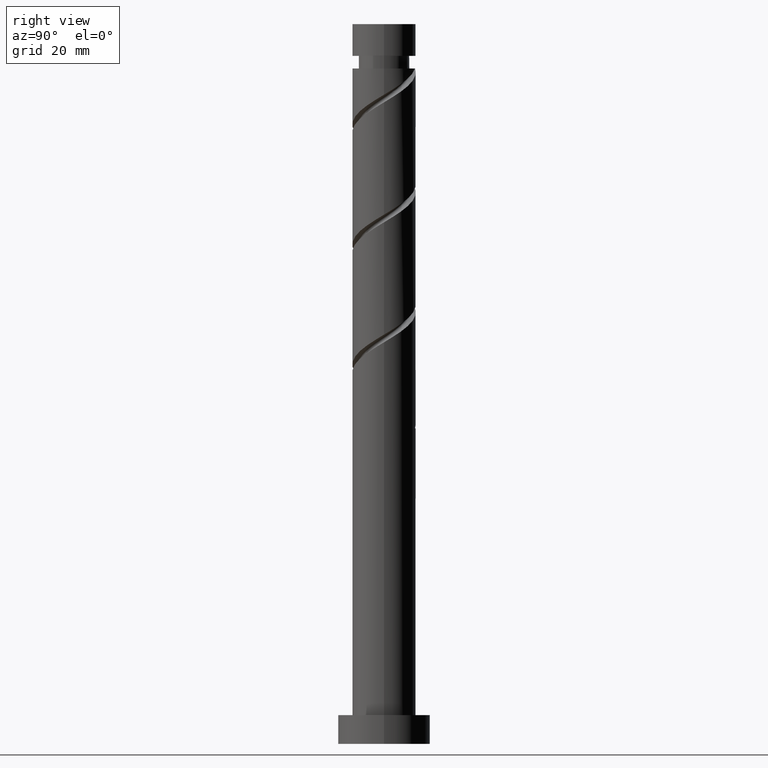
[diagram: clean part render]
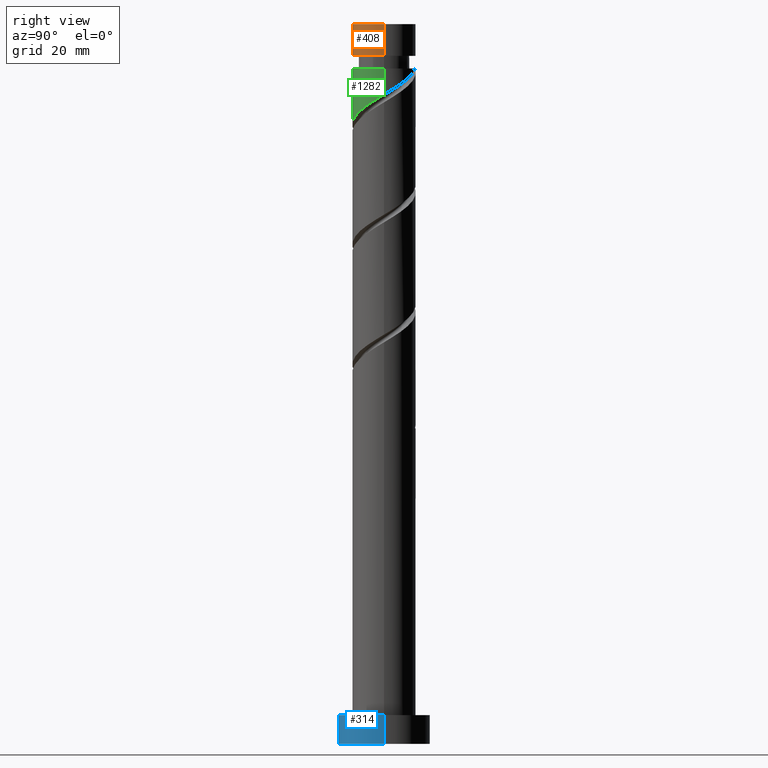
[diagram: same view with three faces highlighted in distinct colors, each labeled with its STEP entity id]
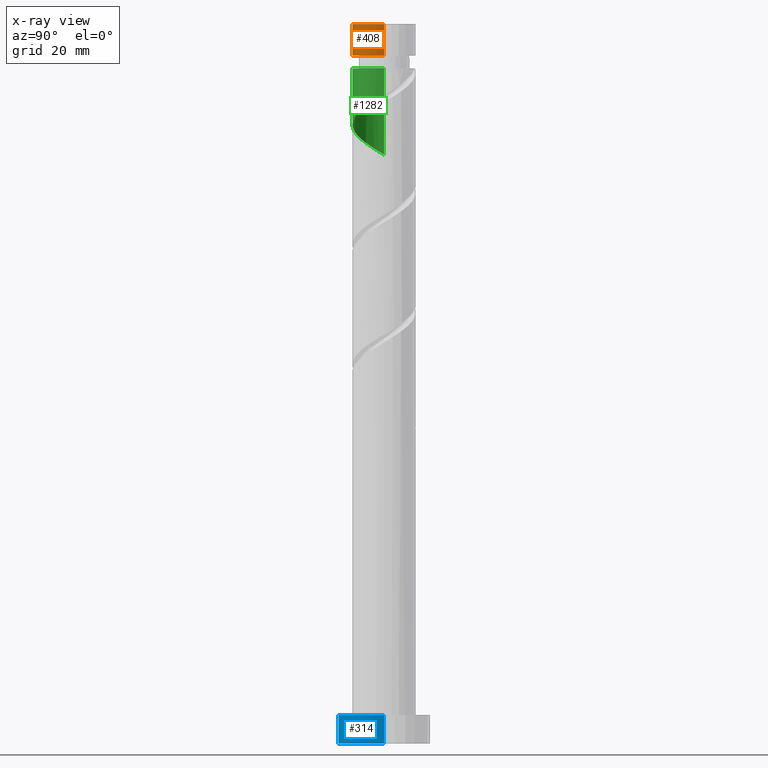
[diagram: x-ray of the same camera — body ghosted, the three highlighted faces saturated]
A machine part, right view with three faces highlighted in distinct colors.
The next image is the same camera in x-ray (body ghosted, the three faces saturated) — at least one of them is partly hidden behind the body in this view.
Their STEP definitions:

[orange] entity #408 — the highlighted cylindrical surface (edge-blend (fillet) strip) has radius 5.5 mm, axis along (-0, -0, -1).
#22 = DIRECTION ( 'NONE',  ( 0.000000000000000000, 0.000000000000000000, 1.000000000000000000 ) ) ;
#91 = DIRECTION ( 'NONE',  ( -1.000000000000000000, 0.000000000000000000, 0.000000000000000000 ) ) ;
#154 = CARTESIAN_POINT ( 'NONE',  ( 0.000000000000000000, 0.000000000000000000, 125.0000000000000000 ) ) ;
#178 = EDGE_LOOP ( 'NONE', ( #687, #1102, #1360, #374 ) ) ;
#227 = DIRECTION ( 'NONE',  ( -0.000000000000000000, -0.000000000000000000, -1.000000000000000000 ) ) ;
#233 = CARTESIAN_POINT ( 'NONE',  ( 0.000000000000000000, 0.000000000000000000, 125.0000000000000000 ) ) ;
#285 = DIRECTION ( 'NONE',  ( -0.000000000000000000, -0.000000000000000000, -1.000000000000000000 ) ) ;
#344 = CARTESIAN_POINT ( 'NONE',  ( 5.500000000000000000, 6.735557395310442023E-16, 125.0000000000000000 ) ) ;
#348 = CYLINDRICAL_SURFACE ( 'NONE', #676, 5.500000000000000000 ) ;
#374 = ORIENTED_EDGE ( 'NONE', *, *, #476, .F. ) ;
#376 = CARTESIAN_POINT ( 'NONE',  ( -5.500000000000000000, 0.000000000000000000, 125.0000000000000000 ) ) ;
#408 = ADVANCED_FACE ( 'NONE', ( #1319 ), #348, .T. ) ;
#476 = EDGE_CURVE ( 'NONE', #930, #1450, #1530, .T. ) ;
#523 = VERTEX_POINT ( 'NONE', #1232 ) ;
#613 = DIRECTION ( 'NONE',  ( -1.000000000000000000, 0.000000000000000000, 0.000000000000000000 ) ) ;
#656 = EDGE_CURVE ( 'NONE', #1082, #523, #1096, .T. ) ;
#676 = AXIS2_PLACEMENT_3D ( 'NONE', #233, #227, #91 ) ;
#687 = ORIENTED_EDGE ( 'NONE', *, *, #941, .F. ) ;
#773 = CARTESIAN_POINT ( 'NONE',  ( 5.499999999999996447, 6.735557395310440051E-16, 119.4876191650925250 ) ) ;
#797 = LINE ( 'NONE', #344, #1293 ) ;
#814 = CARTESIAN_POINT ( 'NONE',  ( 0.000000000000000000, 0.000000000000000000, 119.4876191650925250 ) ) ;
#834 = DIRECTION ( 'NONE',  ( -0.000000000000000000, -0.000000000000000000, -1.000000000000000000 ) ) ;
#842 = CARTESIAN_POINT ( 'NONE',  ( -5.499999999999996447, 0.000000000000000000, 119.4876191650925250 ) ) ;
#862 = LINE ( 'NONE', #376, #1535 ) ;
#911 = CARTESIAN_POINT ( 'NONE',  ( -5.500000000000000000, 0.000000000000000000, 125.0000000000000000 ) ) ;
#930 = VERTEX_POINT ( 'NONE', #773 ) ;
#941 = EDGE_CURVE ( 'NONE', #523, #930, #797, .T. ) ;
#1082 = VERTEX_POINT ( 'NONE', #911 ) ;
#1096 = CIRCLE ( 'NONE', #1168, 5.500000000000000000 ) ;
#1102 = ORIENTED_EDGE ( 'NONE', *, *, #656, .F. ) ;
#1168 = AXIS2_PLACEMENT_3D ( 'NONE', #154, #22, #1225 ) ;
#1215 = EDGE_CURVE ( 'NONE', #1082, #1450, #862, .T. ) ;
#1225 = DIRECTION ( 'NONE',  ( 1.000000000000000000, 0.000000000000000000, 0.000000000000000000 ) ) ;
#1232 = CARTESIAN_POINT ( 'NONE',  ( 5.500000000000000000, 6.735557395310442023E-16, 125.0000000000000000 ) ) ;
#1293 = VECTOR ( 'NONE', #834, 1000.000000000000000 ) ;
#1319 = FACE_OUTER_BOUND ( 'NONE', #178, .T. ) ;
#1324 = AXIS2_PLACEMENT_3D ( 'NONE', #814, #1417, #613 ) ;
#1360 = ORIENTED_EDGE ( 'NONE', *, *, #1215, .T. ) ;
#1417 = DIRECTION ( 'NONE',  ( -0.000000000000000000, -0.000000000000000000, -1.000000000000000000 ) ) ;
#1450 = VERTEX_POINT ( 'NONE', #842 ) ;
#1530 = CIRCLE ( 'NONE', #1324, 5.499999999999996447 ) ;
#1535 = VECTOR ( 'NONE', #285, 1000.000000000000000 ) ;

[blue] entity #314 — the highlighted cylindrical surface (partial cylindrical patch) has radius 8 mm, axis along (-0, -0, -1).
#51 = VERTEX_POINT ( 'NONE', #1511 ) ;
#73 = CARTESIAN_POINT ( 'NONE',  ( -8.000000000000000000, 0.000000000000000000, 5.000000000000000000 ) ) ;
#78 = DIRECTION ( 'NONE',  ( 1.000000000000000000, 0.000000000000000000, 0.000000000000000000 ) ) ;
#98 = DIRECTION ( 'NONE',  ( -1.000000000000000000, 0.000000000000000000, 0.000000000000000000 ) ) ;
#125 = DIRECTION ( 'NONE',  ( 1.000000000000000000, 0.000000000000000000, 0.000000000000000000 ) ) ;
#176 = CARTESIAN_POINT ( 'NONE',  ( -8.000000000000000000, 0.000000000000000000, 0.000000000000000000 ) ) ;
#208 = CARTESIAN_POINT ( 'NONE',  ( 0.000000000000000000, 0.000000000000000000, 5.000000000000000000 ) ) ;
#211 = CIRCLE ( 'NONE', #433, 8.000000000000000000 ) ;
#221 = ORIENTED_EDGE ( 'NONE', *, *, #924, .F. ) ;
#307 = VERTEX_POINT ( 'NONE', #73 ) ;
#314 = ADVANCED_FACE ( 'NONE', ( #1059 ), #319, .T. ) ;
#319 = CYLINDRICAL_SURFACE ( 'NONE', #858, 8.000000000000000000 ) ;
#405 = CIRCLE ( 'NONE', #1003, 8.000000000000000000 ) ;
#410 = LINE ( 'NONE', #1139, #879 ) ;
#433 = AXIS2_PLACEMENT_3D ( 'NONE', #485, #667, #78 ) ;
#463 = LINE ( 'NONE', #548, #1038 ) ;
#467 = DIRECTION ( 'NONE',  ( -0.000000000000000000, -0.000000000000000000, -1.000000000000000000 ) ) ;
#478 = ORIENTED_EDGE ( 'NONE', *, *, #1398, .F. ) ;
#485 = CARTESIAN_POINT ( 'NONE',  ( 0.000000000000000000, 0.000000000000000000, 0.000000000000000000 ) ) ;
#548 = CARTESIAN_POINT ( 'NONE',  ( -8.000000000000000000, 0.000000000000000000, 5.000000000000000000 ) ) ;
#633 = ORIENTED_EDGE ( 'NONE', *, *, #1012, .T. ) ;
#667 = DIRECTION ( 'NONE',  ( 0.000000000000000000, 0.000000000000000000, 1.000000000000000000 ) ) ;
#829 = EDGE_LOOP ( 'NONE', ( #221, #478, #1514, #633 ) ) ;
#858 = AXIS2_PLACEMENT_3D ( 'NONE', #208, #467, #98 ) ;
#868 = VERTEX_POINT ( 'NONE', #176 ) ;
#879 = VECTOR ( 'NONE', #887, 1000.000000000000000 ) ;
#887 = DIRECTION ( 'NONE',  ( -0.000000000000000000, -0.000000000000000000, -1.000000000000000000 ) ) ;
#924 = EDGE_CURVE ( 'NONE', #1338, #51, #410, .T. ) ;
#1003 = AXIS2_PLACEMENT_3D ( 'NONE', #1203, #1472, #125 ) ;
#1012 = EDGE_CURVE ( 'NONE', #868, #51, #211, .T. ) ;
#1027 = CARTESIAN_POINT ( 'NONE',  ( 8.000000000000000000, 9.797174393178825657E-16, 5.000000000000000000 ) ) ;
#1038 = VECTOR ( 'NONE', #1165, 1000.000000000000000 ) ;
#1059 = FACE_OUTER_BOUND ( 'NONE', #829, .T. ) ;
#1139 = CARTESIAN_POINT ( 'NONE',  ( 8.000000000000000000, 9.797174393178825657E-16, 5.000000000000000000 ) ) ;
#1165 = DIRECTION ( 'NONE',  ( -0.000000000000000000, -0.000000000000000000, -1.000000000000000000 ) ) ;
#1203 = CARTESIAN_POINT ( 'NONE',  ( 0.000000000000000000, 0.000000000000000000, 5.000000000000000000 ) ) ;
#1335 = EDGE_CURVE ( 'NONE', #307, #868, #463, .T. ) ;
#1338 = VERTEX_POINT ( 'NONE', #1027 ) ;
#1398 = EDGE_CURVE ( 'NONE', #307, #1338, #405, .T. ) ;
#1472 = DIRECTION ( 'NONE',  ( 0.000000000000000000, 0.000000000000000000, 1.000000000000000000 ) ) ;
#1511 = CARTESIAN_POINT ( 'NONE',  ( 8.000000000000000000, 9.797174393178825657E-16, 0.000000000000000000 ) ) ;
#1514 = ORIENTED_EDGE ( 'NONE', *, *, #1335, .T. ) ;

[green] entity #1282 — the highlighted cylindrical surface (edge-blend (fillet) strip) has radius 5.5 mm, axis along (-0, -0, -1).
#17 = EDGE_CURVE ( 'NONE', #86, #742, #144, .T. ) ;
#61 = DIRECTION ( 'NONE',  ( -0.000000000000000000, -0.000000000000000000, -1.000000000000000000 ) ) ;
#62 = CARTESIAN_POINT ( 'NONE',  ( -5.499999999999999112, -1.799172333984702074E-15, 102.3274216065627797 ) ) ;
#86 = VERTEX_POINT ( 'NONE', #283 ) ;
#104 = CARTESIAN_POINT ( 'NONE',  ( -5.464409452811949564, -0.6246833854196919278, 102.7042858317591936 ) ) ;
#112 = CARTESIAN_POINT ( 'NONE',  ( 2.282704589466713507, -5.003924435603279264, 108.9542858317592220 ) ) ;
#120 = CARTESIAN_POINT ( 'NONE',  ( 3.075248360626010591, -4.642379546774340504, 109.4751191650925222 ) ) ;
#144 = LINE ( 'NONE', #610, #982 ) ;
#190 = FACE_OUTER_BOUND ( 'NONE', #1175, .T. ) ;
#283 = CARTESIAN_POINT ( 'NONE',  ( -5.499999999999998224, 0.000000000000000000, 117.2876191650925364 ) ) ;
#331 = EDGE_CURVE ( 'NONE', #1289, #742, #1107, .T. ) ;
#370 = LINE ( 'NONE', #1349, #682 ) ;
#392 = DIRECTION ( 'NONE',  ( -1.000000000000000000, 0.000000000000000000, 0.000000000000000000 ) ) ;
#436 = CARTESIAN_POINT ( 'NONE',  ( -3.464861313717944480, -4.359309166891293330, 105.3084524984258366 ) ) ;
#442 = CARTESIAN_POINT ( 'NONE',  ( 4.787979792849804461, -2.706519813942239505, 111.0376191650925364 ) ) ;
#502 = DIRECTION ( 'NONE',  ( -0.000000000000000000, -0.000000000000000000, -1.000000000000000000 ) ) ;
#512 = DIRECTION ( 'NONE',  ( -1.000000000000000000, 0.000000000000000000, 0.000000000000000000 ) ) ;
#538 = EDGE_CURVE ( 'NONE', #833, #1289, #370, .T. ) ;
#561 = AXIS2_PLACEMENT_3D ( 'NONE', #886, #61, #392 ) ;
#563 = CARTESIAN_POINT ( 'NONE',  ( 5.499999999999999112, -0.5527707983925673751, 112.4097836978216094 ) ) ;
#571 = CARTESIAN_POINT ( 'NONE',  ( -5.499999999999999112, -0.3133555559553765635, 102.5169326957700520 ) ) ;
#582 = CARTESIAN_POINT ( 'NONE',  ( -2.706519813942239505, -4.787979792849804461, 105.8292858317592220 ) ) ;
#589 = CARTESIAN_POINT ( 'NONE',  ( 3.717278763758652627, -4.053620430246144046, 109.9959524984258650 ) ) ;
#610 = CARTESIAN_POINT ( 'NONE',  ( -5.500000000000000000, 0.000000000000000000, 125.0000000000000000 ) ) ;
#674 = CARTESIAN_POINT ( 'NONE',  ( 0.6246833854196917057, -5.464409452811948675, 107.9126191650925222 ) ) ;
#682 = VECTOR ( 'NONE', #1484, 1000.000000000000000 ) ;
#685 = CARTESIAN_POINT ( 'NONE',  ( 5.499999999999999112, 1.199448222656467918E-15, 112.7440882732294796 ) ) ;
#691 = CARTESIAN_POINT ( 'NONE',  ( -4.642379546774340504, -3.075248360626010591, 104.2667858317591794 ) ) ;
#698 = CARTESIAN_POINT ( 'NONE',  ( -0.2407940474680344278, -5.563349581191682880, 107.3917858317591794 ) ) ;
#701 = EDGE_CURVE ( 'NONE', #833, #86, #1376, .T. ) ;
#742 = VERTEX_POINT ( 'NONE', #62 ) ;
#743 = CARTESIAN_POINT ( 'NONE',  ( 0.000000000000000000, 0.000000000000000000, 117.2876191650925364 ) ) ;
#833 = VERTEX_POINT ( 'NONE', #1496 ) ;
#886 = CARTESIAN_POINT ( 'NONE',  ( 0.000000000000000000, 0.000000000000000000, 125.0000000000000000 ) ) ;
#913 = CARTESIAN_POINT ( 'NONE',  ( -1.948178314166534753, -5.216650418808310263, 106.3501191650925080 ) ) ;
#920 = CARTESIAN_POINT ( 'NONE',  ( -1.094486180817284771, -5.389999999999999680, 106.8709524984258508 ) ) ;
#978 = ORIENTED_EDGE ( 'NONE', *, *, #331, .F. ) ;
#982 = VECTOR ( 'NONE', #502, 1000.000000000000000 ) ;
#1042 = CARTESIAN_POINT ( 'NONE',  ( 4.359309166891291554, -3.464861313717944480, 110.5167858317591651 ) ) ;
#1070 = CARTESIAN_POINT ( 'NONE',  ( -5.003924435603279264, -2.282704589466713507, 103.7459524984258792 ) ) ;
#1107 =( BOUNDED_CURVE ( )  B_SPLINE_CURVE ( 2, ( #685, #563, #1184, #1199, #442, #1042, #589, #120, #112, #1423, #674, #698, #920, #913, #582, #436, #1303, #691, #1070, #1554, #104, #571, #1543 ),
 .UNSPECIFIED., .F., .T. ) 
 B_SPLINE_CURVE_WITH_KNOTS ( ( 3, 2, 2, 2, 2, 2, 2, 2, 2, 2, 2, 3 ),
 ( 0.3045322023138551382, 0.3125000000000000000, 0.3250000000000000111, 0.3375000000000000222, 0.3499999999999999778, 0.3624999999999999889, 0.3750000000000000000, 0.3875000000000000111, 0.4000000000000000222, 0.4124999999999999778, 0.4249999999999999889, 0.4295322023138551937 ),
 .UNSPECIFIED. ) 
 CURVE ( )  GEOMETRIC_REPRESENTATION_ITEM ( )  RATIONAL_B_SPLINE_CURVE ( ( 0.9039174447099322940, 0.9019565955404615920, 0.9090909090909098378, 0.8978984914501261239, 0.9090909090909098378, 0.8978984914501261239, 0.9090909090909098378, 0.8978984914501261239, 0.9090909090909098378, 0.8978984914501261239, 0.9090909090909098378, 0.8978984914501261239, 0.9090909090909098378, 0.8978984914501261239, 0.9090909090909098378, 0.8978984914501261239, 0.9090909090909098378, 0.8978984914501261239, 0.9090909090909098378, 0.8978984914501261239, 0.9090909090909098378, 0.9050328050005743696, 0.9039174447099322940 ) ) 
 REPRESENTATION_ITEM ( '' )  );
#1119 = AXIS2_PLACEMENT_3D ( 'NONE', #743, #1120, #512 ) ;
#1120 = DIRECTION ( 'NONE',  ( -0.000000000000000000, -0.000000000000000000, -1.000000000000000000 ) ) ;
#1138 = CYLINDRICAL_SURFACE ( 'NONE', #561, 5.500000000000000000 ) ;
#1175 = EDGE_LOOP ( 'NONE', ( #1291, #1238, #1483, #978 ) ) ;
#1184 = CARTESIAN_POINT ( 'NONE',  ( 5.389999999999999680, -1.094486180817284993, 112.0792858317592220 ) ) ;
#1199 = CARTESIAN_POINT ( 'NONE',  ( 5.216650418808310263, -1.948178314166534753, 111.5584524984258366 ) ) ;
#1238 = ORIENTED_EDGE ( 'NONE', *, *, #701, .T. ) ;
#1282 = ADVANCED_FACE ( 'NONE', ( #190 ), #1138, .T. ) ;
#1289 = VERTEX_POINT ( 'NONE', #1489 ) ;
#1291 = ORIENTED_EDGE ( 'NONE', *, *, #538, .F. ) ;
#1303 = CARTESIAN_POINT ( 'NONE',  ( -4.053620430246144046, -3.717278763758652627, 104.7876191650925506 ) ) ;
#1349 = CARTESIAN_POINT ( 'NONE',  ( 5.500000000000000000, 6.735557395310442023E-16, 125.0000000000000000 ) ) ;
#1376 = CIRCLE ( 'NONE', #1119, 5.499999999999998224 ) ;
#1423 = CARTESIAN_POINT ( 'NONE',  ( 1.490160818307416868, -5.365469324432214471, 108.4334524984258223 ) ) ;
#1483 = ORIENTED_EDGE ( 'NONE', *, *, #17, .T. ) ;
#1484 = DIRECTION ( 'NONE',  ( -0.000000000000000000, -0.000000000000000000, -1.000000000000000000 ) ) ;
#1489 = CARTESIAN_POINT ( 'NONE',  ( 5.499999999999999112, 1.199448222656467918E-15, 112.7440882732294796 ) ) ;
#1496 = CARTESIAN_POINT ( 'NONE',  ( 5.499999999999998224, 6.735557395310441037E-16, 117.2876191650925364 ) ) ;
#1543 = CARTESIAN_POINT ( 'NONE',  ( -5.499999999999999112, -1.799172333984702074E-15, 102.3274216065627797 ) ) ;
#1554 = CARTESIAN_POINT ( 'NONE',  ( -5.365469324432214471, -1.490160818307417978, 103.2251191650925080 ) ) ;